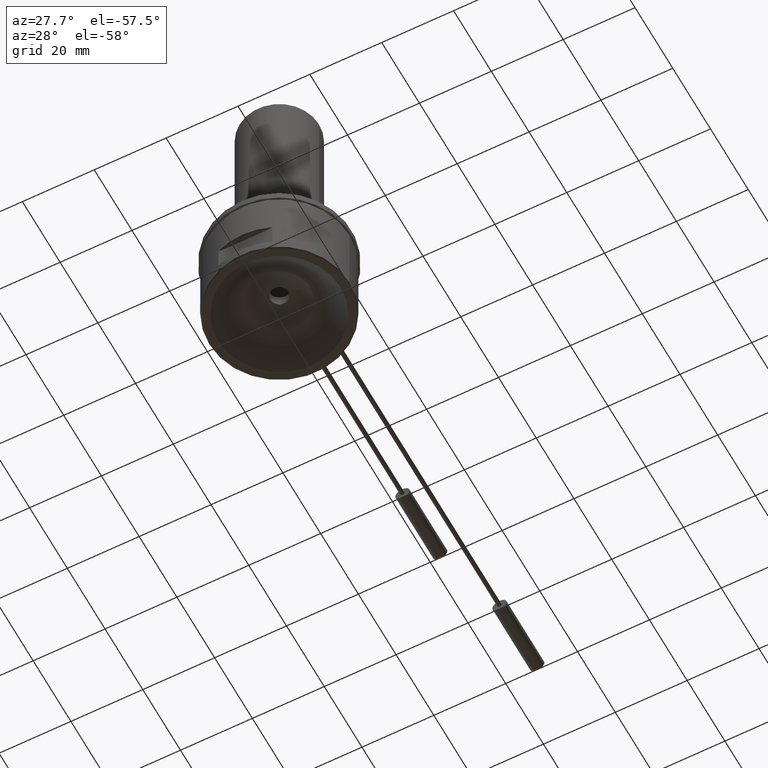
[diagram: clean part render]
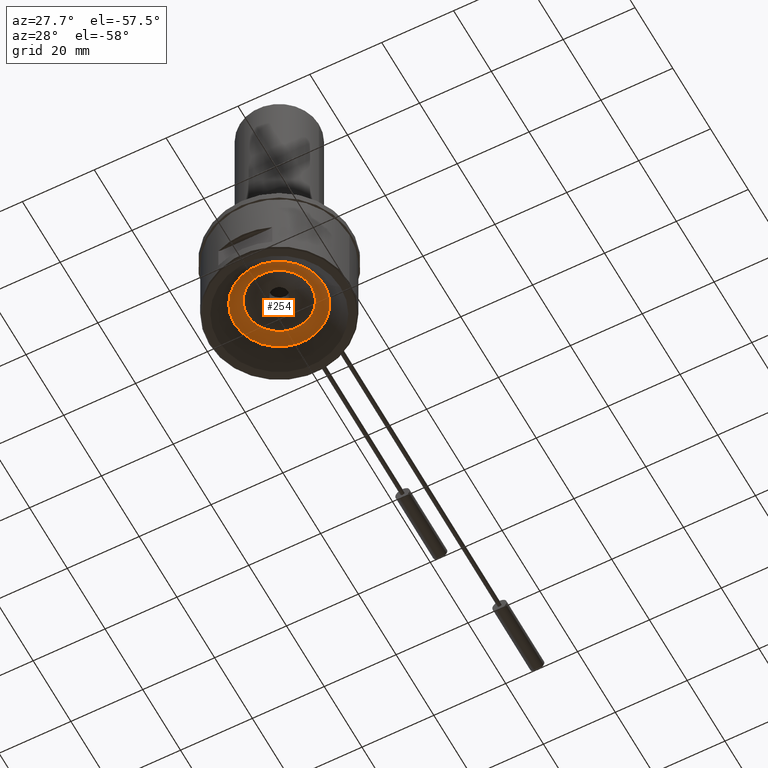
[diagram: same view with one face highlighted and labeled with its STEP entity id]
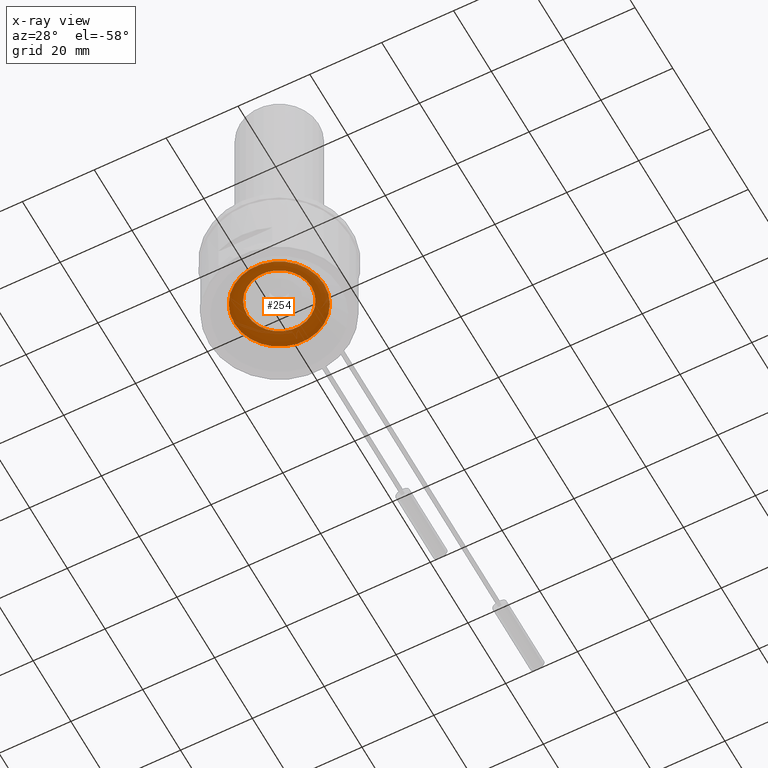
[diagram: x-ray of the same camera — body ghosted, the highlighted face saturated]
A machine part, auxiliary view. The second image highlights one B-rep face of the part: STEP entity #254.
The next image is the same camera in x-ray: the body ghosted, the highlighted face saturated — about 0% of this face is hidden behind the body in this view.
In plain terms, the highlighted toroidal blend (fillet) surface has major radius 8.9289 mm and minor (blend) radius 5 mm.
Its self-contained STEP definition (entity closure, byte-faithful):
#180=TOROIDAL_SURFACE('',#1196,8.92893218813457,5.);
#254=ADVANCED_FACE('',(#377,#378),#180,.F.);
#377=FACE_BOUND('',#459,.T.);
#378=FACE_BOUND('',#460,.T.);
#459=EDGE_LOOP('',(#638));
#460=EDGE_LOOP('',(#639));
#638=ORIENTED_EDGE('',*,*,#998,.F.);
#639=ORIENTED_EDGE('',*,*,#997,.F.);
#873=VERTEX_POINT('',#2068);
#874=VERTEX_POINT('',#2071);
#997=EDGE_CURVE('',#873,#873,#1097,.T.);
#998=EDGE_CURVE('',#874,#874,#1098,.T.);
#1097=CIRCLE('',#1193,8.92893218813457);
#1098=CIRCLE('',#1195,12.4644660940673);
#1193=AXIS2_PLACEMENT_3D('',#2067,#1433,#1434);
#1195=AXIS2_PLACEMENT_3D('',#2070,#1437,#1438);
#1196=AXIS2_PLACEMENT_3D('',#2072,#1439,#1440);
#1433=DIRECTION('',(0.,0.,-1.));
#1434=DIRECTION('',(1.,0.,0.));
#1437=DIRECTION('',(0.,0.,1.));
#1438=DIRECTION('',(-1.,0.,0.));
#1439=DIRECTION('',(0.,0.,1.));
#1440=DIRECTION('',(1.,0.,0.));
#2067=CARTESIAN_POINT('',(0.,0.,5.99999999999997));
#2068=CARTESIAN_POINT('',(8.92893218813457,0.,5.99999999999997));
#2070=CARTESIAN_POINT('',(0.,0.,4.5355339059327));
#2071=CARTESIAN_POINT('',(-12.4644660940673,0.,4.5355339059327));
#2072=CARTESIAN_POINT('',(0.,0.,0.999999999999974));